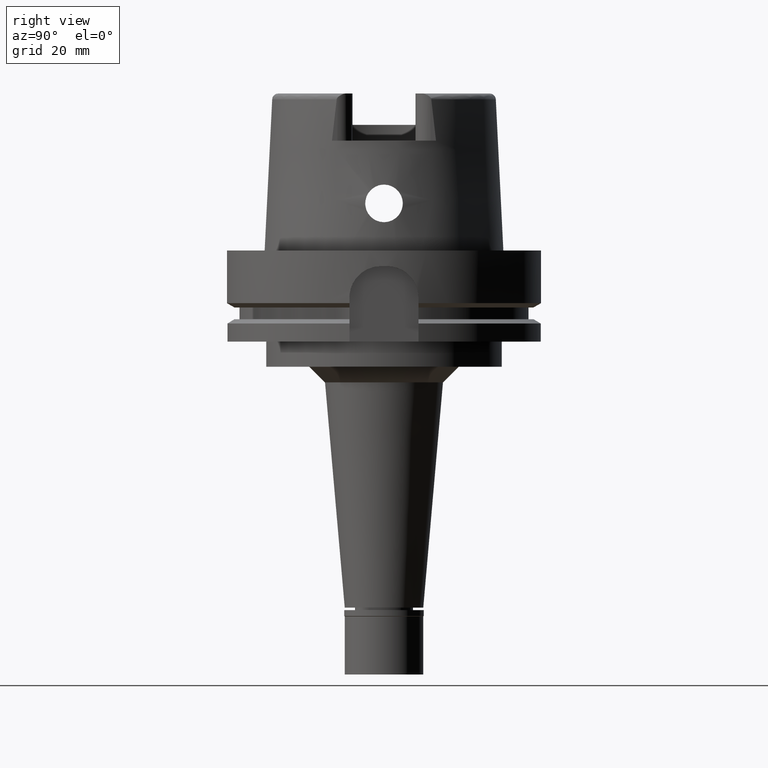
[diagram: clean part render]
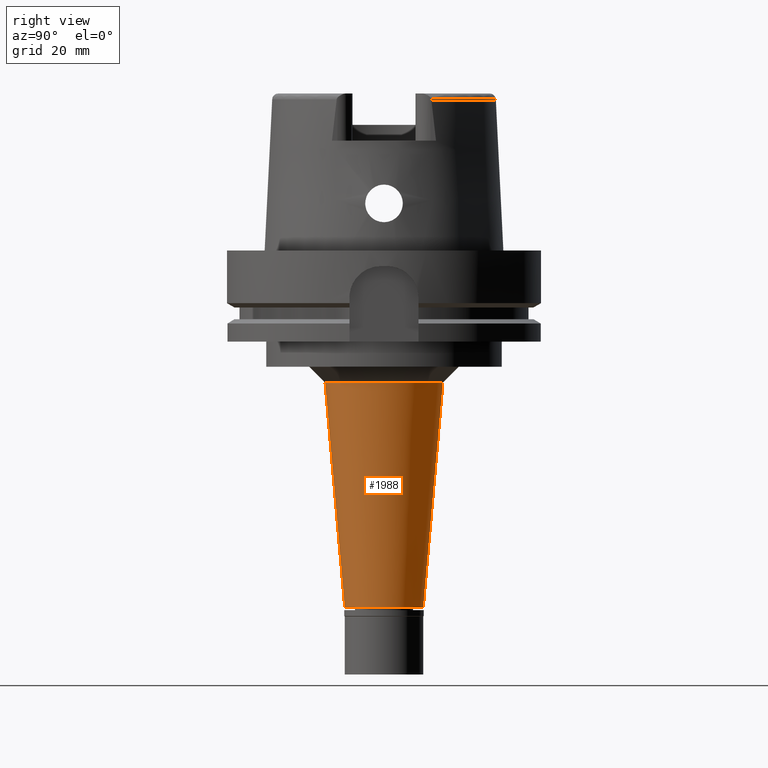
[diagram: same view with one face highlighted and labeled with its STEP entity id]
A machine part, right view. The second image highlights one B-rep face of the part: STEP entity #1988.
In plain terms, the highlighted conical surface has half-angle 5 deg.
Its self-contained STEP definition (entity closure, byte-faithful):
#169 = CARTESIAN_POINT ( 'NONE',  ( 0.0000000000000000000, 0.0000000000000000000, -77.85000000000000853 ) ) ;
#195 = FACE_OUTER_BOUND ( 'NONE', #901, .T. ) ;
#429 = AXIS2_PLACEMENT_3D ( 'NONE', #169, #538, #509 ) ;
#470 = DIRECTION ( 'NONE',  ( 0.0000000000000000000, 0.0000000000000000000, 1.000000000000000000 ) ) ;
#509 = DIRECTION ( 'NONE',  ( 0.0000000000000000000, 1.000000000000000000, 0.0000000000000000000 ) ) ;
#538 = DIRECTION ( 'NONE',  ( 0.0000000000000000000, 0.0000000000000000000, 1.000000000000000000 ) ) ;
#642 = LINE ( 'NONE', #3302, #3544 ) ;
#901 = EDGE_LOOP ( 'NONE', ( #4520, #4679, #2428, #1208 ) ) ;
#928 = DIRECTION ( 'NONE',  ( 0.0000000000000000000, 0.0000000000000000000, 1.000000000000000000 ) ) ;
#1115 = CARTESIAN_POINT ( 'NONE',  ( 0.0000000000000000000, 18.77293717481000002, -42.00000000000000000 ) ) ;
#1208 = ORIENTED_EDGE ( 'NONE', *, *, #5322, .F. ) ;
#1293 = CIRCLE ( 'NONE', #1919, 18.77293717479999913 ) ;
#1367 = DIRECTION ( 'NONE',  ( 0.0000000000000000000, -1.000000000000000000, 0.0000000000000000000 ) ) ;
#1625 = CARTESIAN_POINT ( 'NONE',  ( 0.0000000000000000000, 12.50000000000000000, -113.6999999999999886 ) ) ;
#1670 = CARTESIAN_POINT ( 'NONE',  ( 0.0000000000000000000, -12.50000000000000000, -113.6999999999999886 ) ) ;
#1741 = CARTESIAN_POINT ( 'NONE',  ( 0.0000000000000000000, 0.0000000000000000000, -113.6999999999999886 ) ) ;
#1919 = AXIS2_PLACEMENT_3D ( 'NONE', #3810, #928, #4138 ) ;
#1988 = ADVANCED_FACE ( 'NONE', ( #195 ), #4668, .T. ) ;
#1998 = LINE ( 'NONE', #1115, #2383 ) ;
#2116 = VERTEX_POINT ( 'NONE', #4584 ) ;
#2313 = EDGE_CURVE ( 'NONE', #5020, #4291, #2945, .T. ) ;
#2383 = VECTOR ( 'NONE', #3211, 1000.000000000000227 ) ;
#2428 = ORIENTED_EDGE ( 'NONE', *, *, #2313, .T. ) ;
#2515 = VERTEX_POINT ( 'NONE', #3199 ) ;
#2945 = CIRCLE ( 'NONE', #3034, 12.50000000000000000 ) ;
#3034 = AXIS2_PLACEMENT_3D ( 'NONE', #1741, #470, #1367 ) ;
#3199 = CARTESIAN_POINT ( 'NONE',  ( 0.0000000000000000000, 18.77293717481000002, -42.00000000000000000 ) ) ;
#3211 = DIRECTION ( 'NONE',  ( 0.0000000000000000000, -0.08715574274768382590, -0.9961946980917432137 ) ) ;
#3302 = CARTESIAN_POINT ( 'NONE',  ( 0.0000000000000000000, -18.77293717481000002, -42.00000000000000000 ) ) ;
#3479 = EDGE_CURVE ( 'NONE', #2116, #5020, #642, .T. ) ;
#3544 = VECTOR ( 'NONE', #5062, 1000.000000000000227 ) ;
#3707 = EDGE_CURVE ( 'NONE', #2116, #2515, #1293, .T. ) ;
#3810 = CARTESIAN_POINT ( 'NONE',  ( 0.0000000000000000000, 0.0000000000000000000, -42.00000000000000000 ) ) ;
#4138 = DIRECTION ( 'NONE',  ( 0.0000000000000000000, -1.000000000000000000, 0.0000000000000000000 ) ) ;
#4291 = VERTEX_POINT ( 'NONE', #1625 ) ;
#4520 = ORIENTED_EDGE ( 'NONE', *, *, #3707, .F. ) ;
#4584 = CARTESIAN_POINT ( 'NONE',  ( 0.0000000000000000000, -18.77293717481000002, -42.00000000000000000 ) ) ;
#4668 = CONICAL_SURFACE ( 'NONE', #429, 15.63646858740000134, 0.08726646259969973729 ) ;
#4679 = ORIENTED_EDGE ( 'NONE', *, *, #3479, .T. ) ;
#5020 = VERTEX_POINT ( 'NONE', #1670 ) ;
#5062 = DIRECTION ( 'NONE',  ( 0.0000000000000000000, 0.08715574274768382590, -0.9961946980917432137 ) ) ;
#5322 = EDGE_CURVE ( 'NONE', #2515, #4291, #1998, .T. ) ;